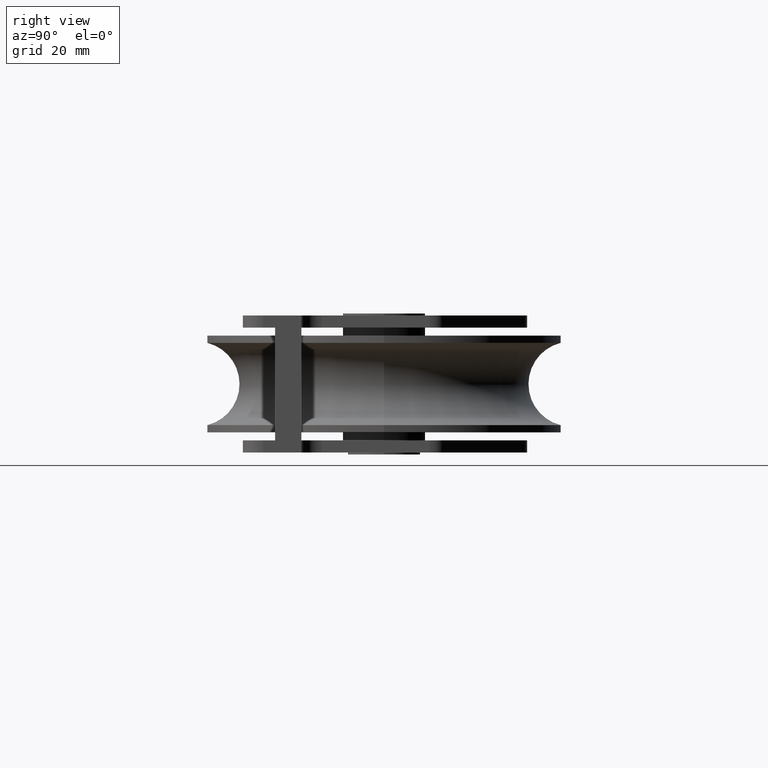
[diagram: clean part render]
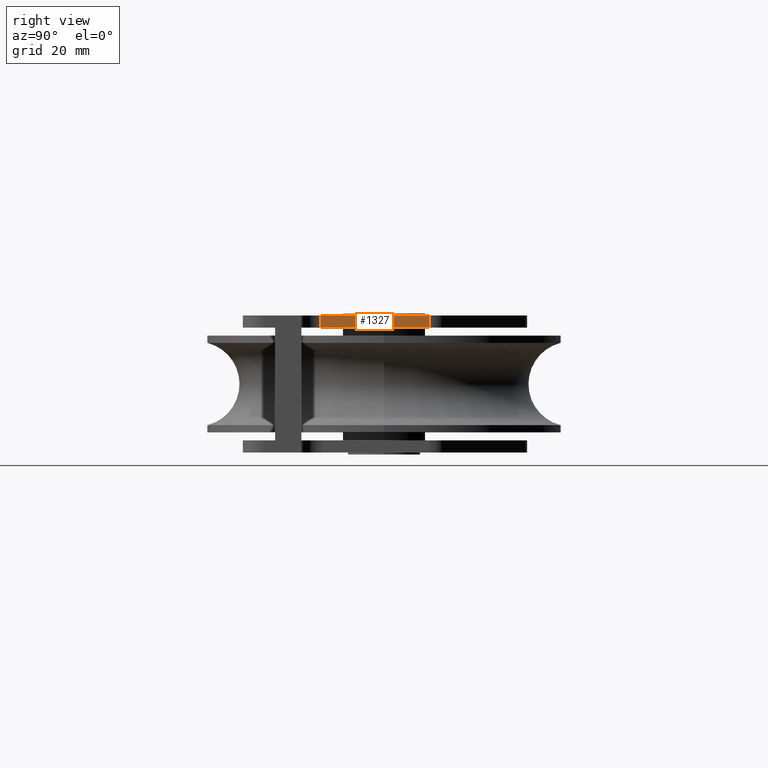
[diagram: same view with one face highlighted and labeled with its STEP entity id]
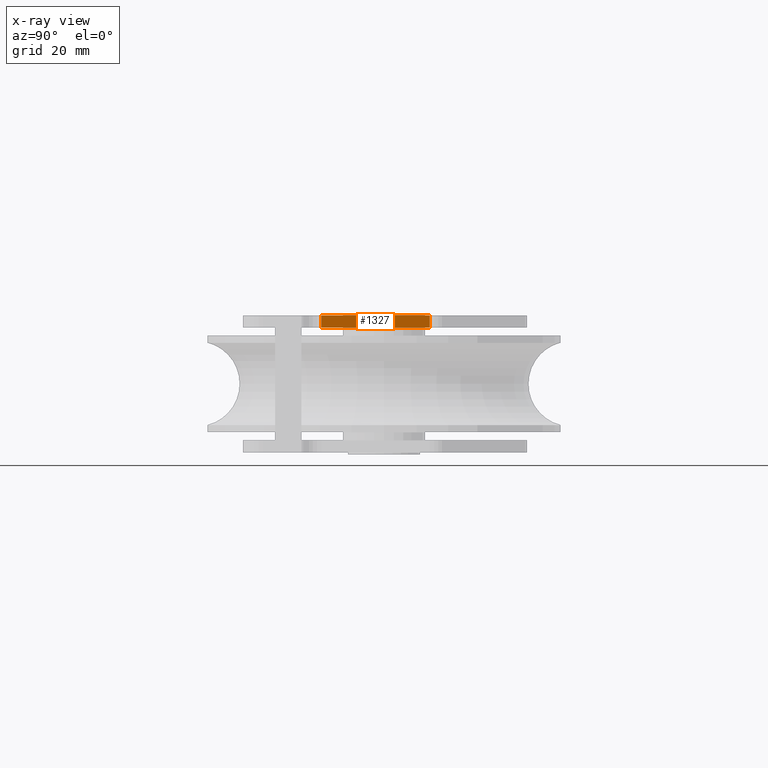
[diagram: x-ray of the same camera — body ghosted, the highlighted face saturated]
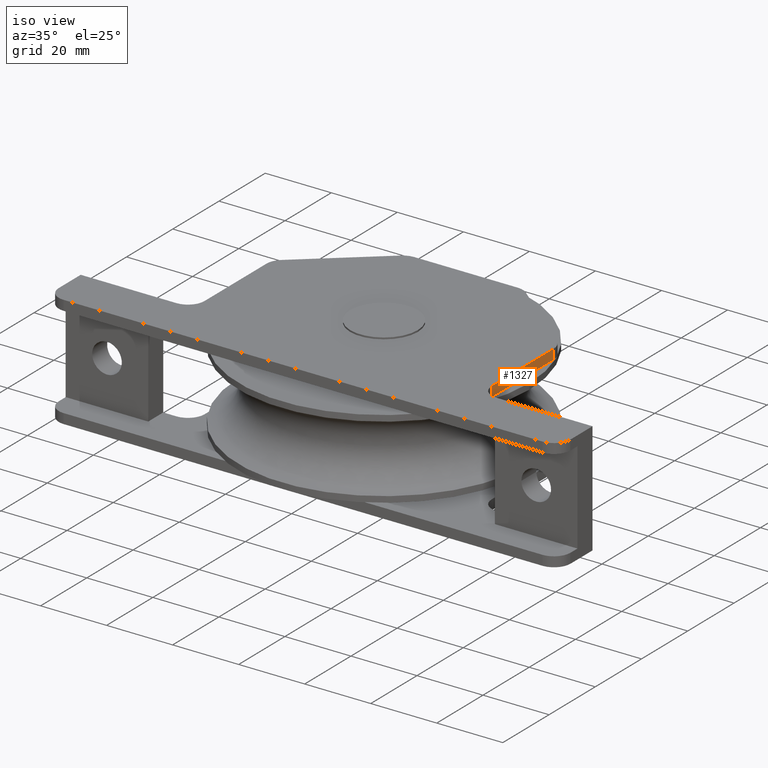
[diagram: same view with one face highlighted and labeled with its STEP entity id]
A machine part, right view. The second image highlights one B-rep face of the part: STEP entity #1327.
The next image is the same camera in x-ray: the body ghosted, the highlighted face saturated — about 0% of this face is hidden behind the body in this view.
A second angle (iso view) of the same face is appended — the face is thin or edge-on in the first view.
In plain terms, the highlighted planar face has unit normal (-1, -0, 0).
Its self-contained STEP definition (entity closure, byte-faithful):
#118 = VERTEX_POINT ( 'NONE', #5069 ) ;
#231 = EDGE_CURVE ( 'NONE', #6331, #14186, #3176, .T. ) ;
#399 = CARTESIAN_POINT ( 'NONE',  ( 43.50000000000000700, -15.50000000000001100, 14.00000000000000000 ) ) ;
#781 = VERTEX_POINT ( 'NONE', #14406 ) ;
#806 = AXIS2_PLACEMENT_3D ( 'NONE', #4512, #3389, #4461 ) ;
#1232 = LINE ( 'NONE', #4935, #1430 ) ;
#1327 = ADVANCED_FACE ( 'NONE', ( #5422 ), #6748, .F. ) ;
#1430 = VECTOR ( 'NONE', #8273, 1000.000000000000000 ) ;
#1800 = LINE ( 'NONE', #4195, #13253 ) ;
#2897 = ORIENTED_EDGE ( 'NONE', *, *, #13866, .F. ) ;
#3176 = LINE ( 'NONE', #8474, #7365 ) ;
#3266 = VECTOR ( 'NONE', #3784, 1000.000000000000000 ) ;
#3389 = DIRECTION ( 'NONE',  ( -1.000000000000000000, -2.029901050613973900E-016, 0.0000000000000000000 ) ) ;
#3784 = DIRECTION ( 'NONE',  ( -2.029901050613973900E-016, 1.000000000000000000, -0.0000000000000000000 ) ) ;
#4195 = CARTESIAN_POINT ( 'NONE',  ( 43.50000000000000000, 11.35187129861583900, 17.00000000000000000 ) ) ;
#4461 = DIRECTION ( 'NONE',  ( 2.029901050613973900E-016, -1.000000000000000000, 0.0000000000000000000 ) ) ;
#4512 = CARTESIAN_POINT ( 'NONE',  ( 43.50000000000000000, 13.68340958939084300, 17.00000000000000000 ) ) ;
#4813 = CARTESIAN_POINT ( 'NONE',  ( 43.50000000000000000, 13.68340958939084300, 14.00000000000000000 ) ) ;
#4935 = CARTESIAN_POINT ( 'NONE',  ( 43.50000000000000000, 13.68340958939084300, 17.00000000000000000 ) ) ;
#5069 = CARTESIAN_POINT ( 'NONE',  ( 43.50000000000000000, 11.35187129861583900, 17.00000000000000000 ) ) ;
#5422 = FACE_OUTER_BOUND ( 'NONE', #14400, .T. ) ;
#6331 = VERTEX_POINT ( 'NONE', #12718 ) ;
#6748 = PLANE ( 'NONE',  #806 ) ;
#7365 = VECTOR ( 'NONE', #12822, 1000.000000000000000 ) ;
#7935 = ORIENTED_EDGE ( 'NONE', *, *, #10997, .T. ) ;
#8273 = DIRECTION ( 'NONE',  ( -2.029901050613973900E-016, 1.000000000000000000, -0.0000000000000000000 ) ) ;
#8311 = EDGE_CURVE ( 'NONE', #781, #118, #1800, .T. ) ;
#8360 = ORIENTED_EDGE ( 'NONE', *, *, #8311, .T. ) ;
#8474 = CARTESIAN_POINT ( 'NONE',  ( 43.50000000000000700, -15.50000000000001100, 14.00000000000000000 ) ) ;
#9686 = ORIENTED_EDGE ( 'NONE', *, *, #231, .T. ) ;
#10997 = EDGE_CURVE ( 'NONE', #14186, #781, #12135, .T. ) ;
#12020 = DIRECTION ( 'NONE',  ( -0.0000000000000000000, -0.0000000000000000000, 1.000000000000000000 ) ) ;
#12135 = LINE ( 'NONE', #4813, #3266 ) ;
#12718 = CARTESIAN_POINT ( 'NONE',  ( 43.50000000000000700, -15.50000000000001100, 17.00000000000000000 ) ) ;
#12822 = DIRECTION ( 'NONE',  ( 0.0000000000000000000, 0.0000000000000000000, -1.000000000000000000 ) ) ;
#13253 = VECTOR ( 'NONE', #12020, 1000.000000000000000 ) ;
#13866 = EDGE_CURVE ( 'NONE', #6331, #118, #1232, .T. ) ;
#14186 = VERTEX_POINT ( 'NONE', #399 ) ;
#14400 = EDGE_LOOP ( 'NONE', ( #2897, #9686, #7935, #8360 ) ) ;
#14406 = CARTESIAN_POINT ( 'NONE',  ( 43.50000000000000000, 11.35187129861583900, 14.00000000000000000 ) ) ;